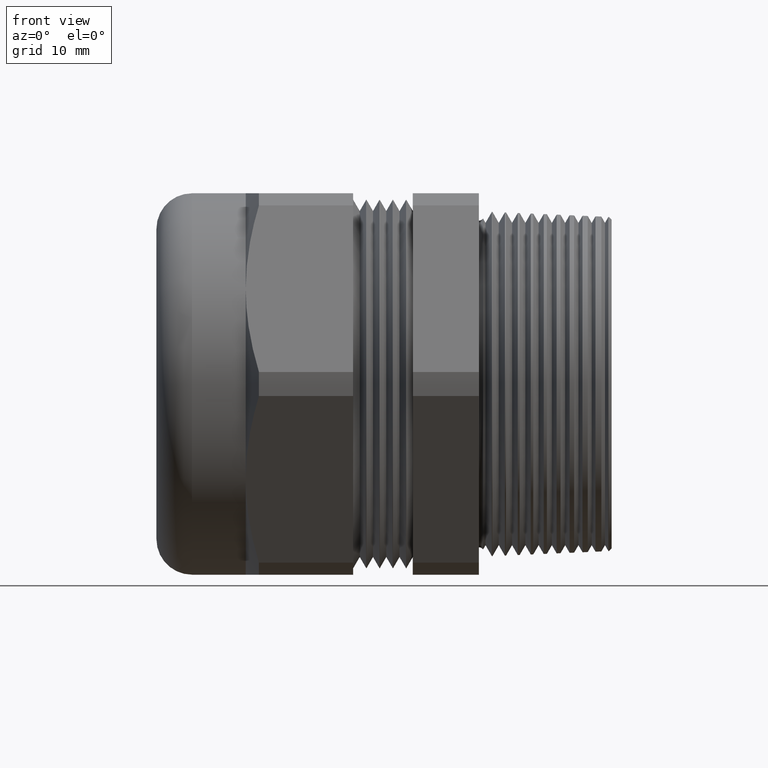
[diagram: clean part render]
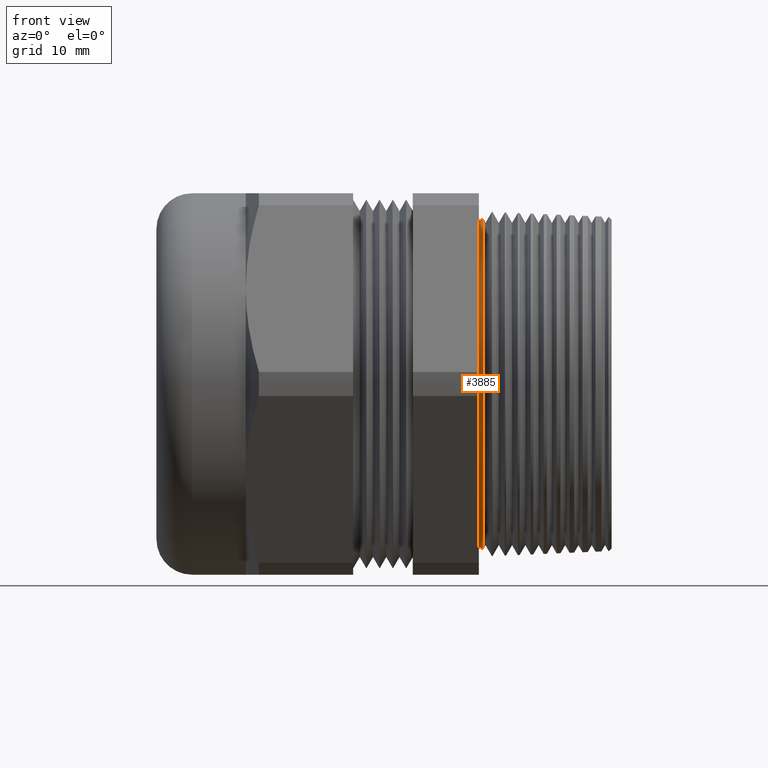
[diagram: same view with one face highlighted and labeled with its STEP entity id]
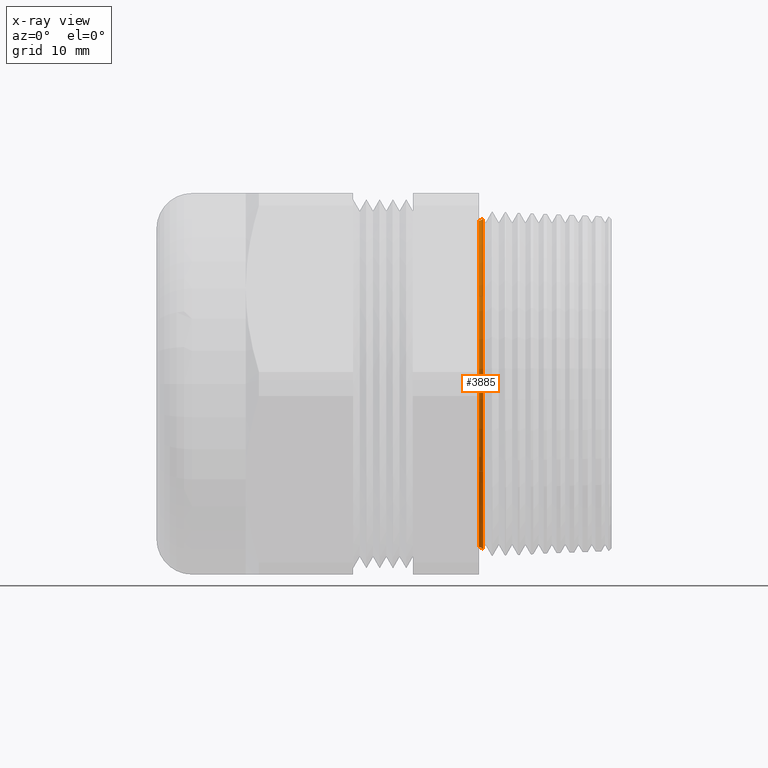
[diagram: x-ray of the same camera — body ghosted, the highlighted face saturated]
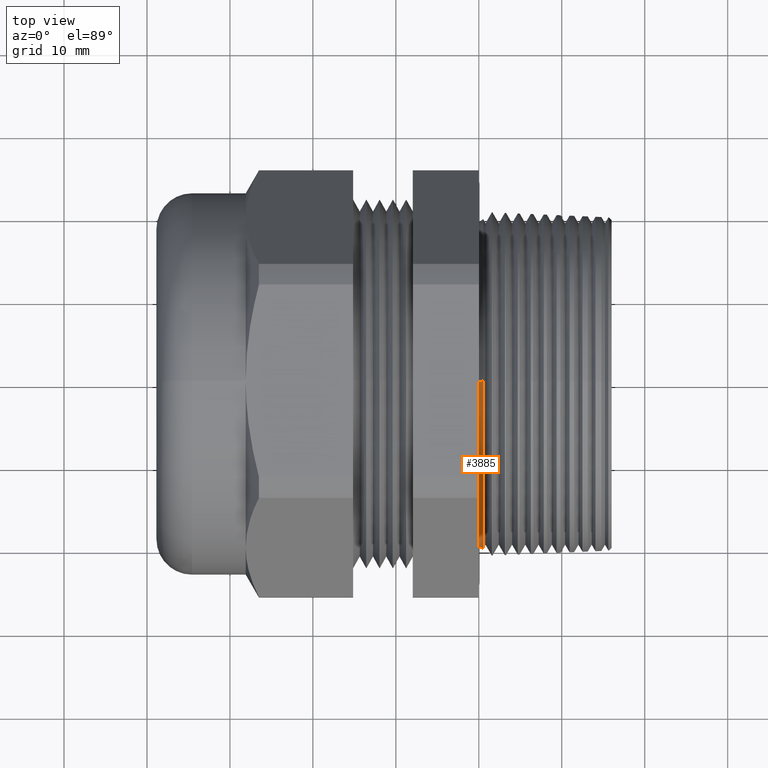
[diagram: same view with one face highlighted and labeled with its STEP entity id]
A machine part, front view. The second image highlights one B-rep face of the part: STEP entity #3885.
The next image is the same camera in x-ray: the body ghosted, the highlighted face saturated — about 0% of this face is hidden behind the body in this view.
A second angle (top view) of the same face is appended — the face is thin or edge-on in the first view.
In plain terms, the highlighted toroidal blend (fillet) surface has major radius 20.32 mm and minor (blend) radius 0.635 mm.
Its self-contained STEP definition (entity closure, byte-faithful):
#692 = EDGE_CURVE ( 'NONE', #693, #3897, #2430, .T. ) ;
#693 = VERTEX_POINT ( 'NONE', #2425 ) ;
#2425 = CARTESIAN_POINT ( 'NONE',  ( 0.02011669327523437100, 9.615398417553544000E-017, -0.7851568651670145500 ) ) ;
#2426 = DIRECTION ( 'NONE',  ( 0.0000000000000000000, 0.0000000000000000000, -1.000000000000000000 ) ) ;
#2427 = DIRECTION ( 'NONE',  ( 0.0000000000000000000, -1.000000000000000000, 0.0000000000000000000 ) ) ;
#2428 = CARTESIAN_POINT ( 'NONE',  ( 0.0000000000000000000, 0.0000000000000000000, -0.7999999999999999300 ) ) ;
#2429 = AXIS2_PLACEMENT_3D ( 'NONE', #2428, #2427, #2426 ) ;
#2430 = CIRCLE ( 'NONE', #2429, 0.02499999999999987000 ) ;
#2820 = AXIS2_PLACEMENT_3D ( 'NONE', #3088, #3082, #3081 ) ;
#2821 = CIRCLE ( 'NONE', #2820, 0.7750000000000000200 ) ;
#3081 = DIRECTION ( 'NONE',  ( 0.0000000000000000000, 0.0000000000000000000, -1.000000000000000000 ) ) ;
#3082 = DIRECTION ( 'NONE',  ( 1.000000000000000000, 0.0000000000000000000, 0.0000000000000000000 ) ) ;
#3088 = CARTESIAN_POINT ( 'NONE',  ( -3.061616997868362800E-018, 0.0000000000000000000, 0.0000000000000000000 ) ) ;
#3214 = DIRECTION ( 'NONE',  ( 0.0000000000000000000, 1.224646799147352200E-016, 1.000000000000000000 ) ) ;
#3215 = DIRECTION ( 'NONE',  ( 0.0000000000000000000, 1.000000000000000000, -1.224646799147353200E-016 ) ) ;
#3216 = CARTESIAN_POINT ( 'NONE',  ( 0.0000000000000000000, 9.797174393178824900E-017, 0.7999999999999999300 ) ) ;
#3217 = AXIS2_PLACEMENT_3D ( 'NONE', #3216, #3215, #3214 ) ;
#3218 = CIRCLE ( 'NONE', #3217, 0.02499999999999987000 ) ;
#3219 = CARTESIAN_POINT ( 'NONE',  ( 0.02011669327523437100, 0.0000000000000000000, 0.7851568651670145500 ) ) ;
#3239 = CARTESIAN_POINT ( 'NONE',  ( 0.0000000000000000000, 0.0000000000000000000, 0.0000000000000000000 ) ) ;
#3240 = FACE_OUTER_BOUND ( 'NONE', #3886, .T. ) ;
#3285 = CARTESIAN_POINT ( 'NONE',  ( -3.061616997868358500E-018, 0.0000000000000000000, -0.7750000000000000200 ) ) ;
#3301 = CARTESIAN_POINT ( 'NONE',  ( -3.061616997868358500E-018, 9.491012693391988500E-017, 0.7750000000000000200 ) ) ;
#3302 = DIRECTION ( 'NONE',  ( 0.0000000000000000000, 0.0000000000000000000, -1.000000000000000000 ) ) ;
#3303 = DIRECTION ( 'NONE',  ( 1.000000000000000000, 0.0000000000000000000, 0.0000000000000000000 ) ) ;
#3304 = AXIS2_PLACEMENT_3D ( 'NONE', #3239, #3303, #3302 ) ;
#3305 = TOROIDAL_SURFACE ( 'NONE', #3304, 0.7999999999999999300, 0.02499999999999983500 ) ;
#3342 = DIRECTION ( 'NONE',  ( 0.0000000000000000000, 0.0000000000000000000, 1.000000000000000000 ) ) ;
#3343 = DIRECTION ( 'NONE',  ( 1.000000000000000000, 0.0000000000000000000, 0.0000000000000000000 ) ) ;
#3344 = CARTESIAN_POINT ( 'NONE',  ( 0.02011669327523437100, 0.0000000000000000000, 0.0000000000000000000 ) ) ;
#3345 = AXIS2_PLACEMENT_3D ( 'NONE', #3344, #3343, #3342 ) ;
#3346 = CIRCLE ( 'NONE', #3345, 0.7851568651670145500 ) ;
#3855 = VERTEX_POINT ( 'NONE', #3219 ) ;
#3867 = EDGE_CURVE ( 'NONE', #3855, #3887, #3218, .T. ) ;
#3869 = ORIENTED_EDGE ( 'NONE', *, *, #3867, .T. ) ;
#3885 = ADVANCED_FACE ( 'NONE', ( #3240 ), #3305, .F. ) ;
#3886 = EDGE_LOOP ( 'NONE', ( #3869, #3942, #3943, #3945 ) ) ;
#3887 = VERTEX_POINT ( 'NONE', #3301 ) ;
#3897 = VERTEX_POINT ( 'NONE', #3285 ) ;
#3933 = EDGE_CURVE ( 'NONE', #3855, #693, #3346, .T. ) ;
#3940 = EDGE_CURVE ( 'NONE', #3887, #3897, #2821, .T. ) ;
#3942 = ORIENTED_EDGE ( 'NONE', *, *, #3940, .T. ) ;
#3943 = ORIENTED_EDGE ( 'NONE', *, *, #692, .F. ) ;
#3945 = ORIENTED_EDGE ( 'NONE', *, *, #3933, .F. ) ;